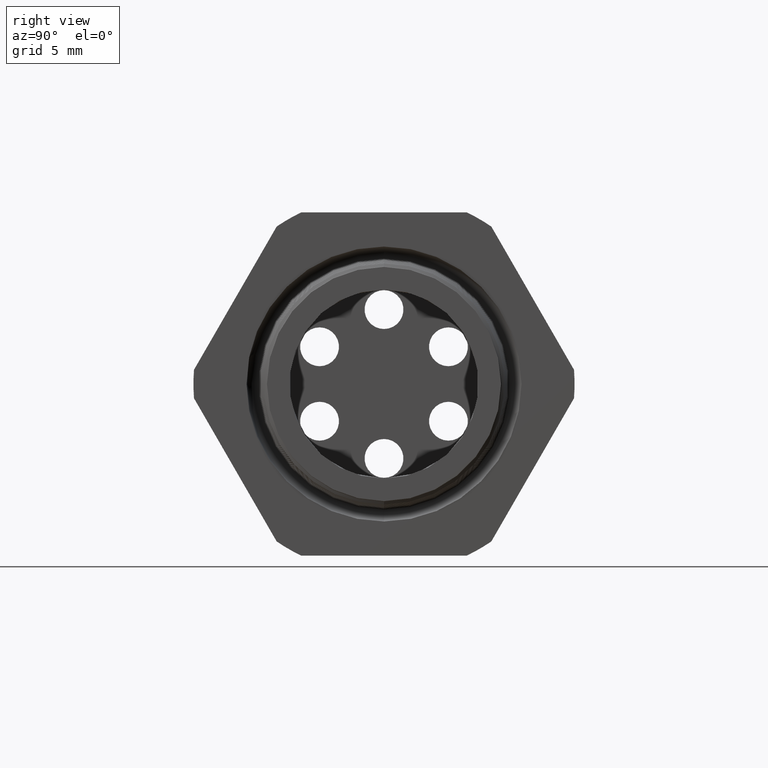
[diagram: clean part render]
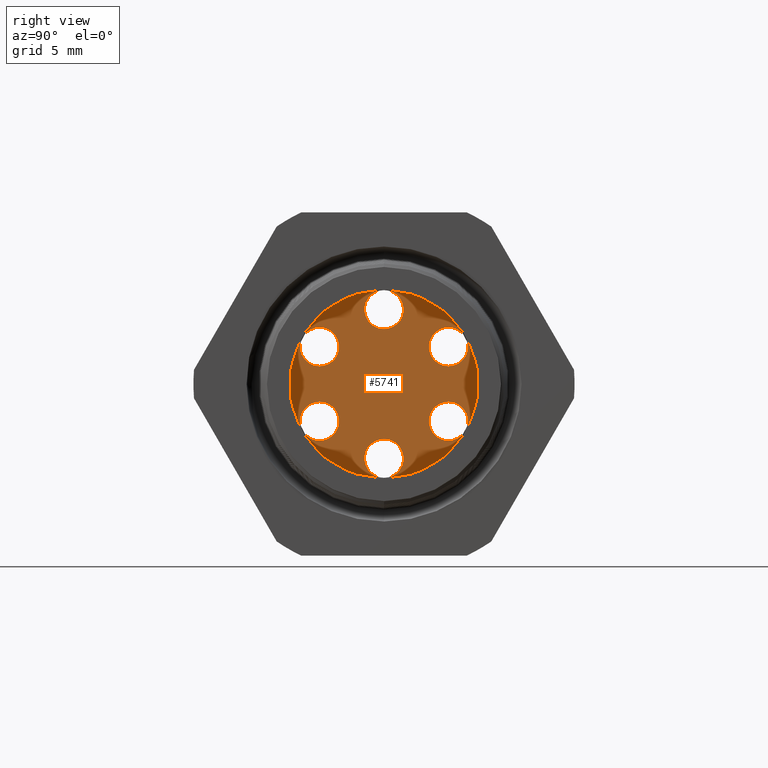
[diagram: same view with one face highlighted and labeled with its STEP entity id]
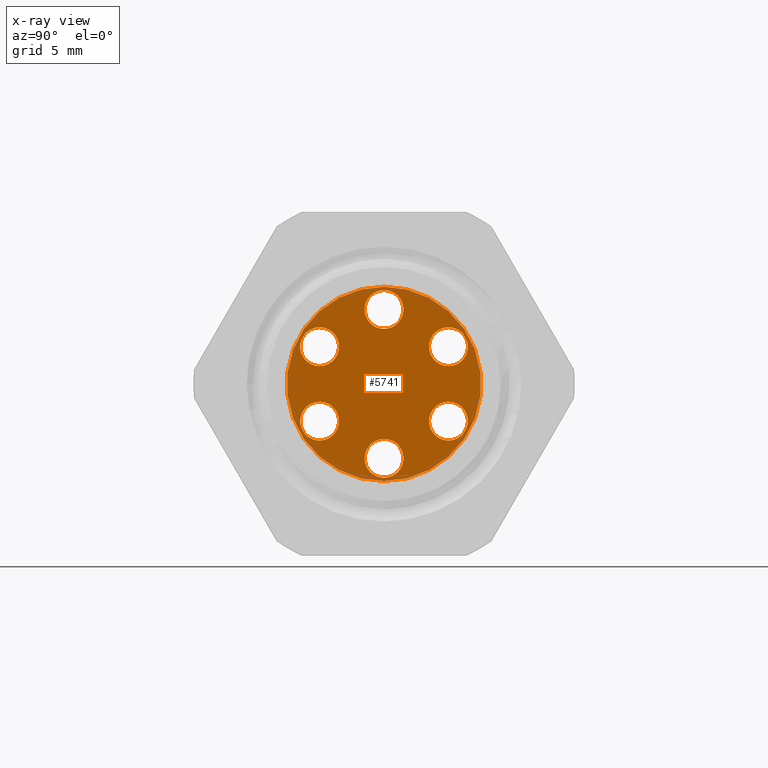
[diagram: x-ray of the same camera — body ghosted, the highlighted face saturated]
A machine part, right view. The second image highlights one B-rep face of the part: STEP entity #5741.
The next image is the same camera in x-ray: the body ghosted, the highlighted face saturated — about 8% of this face is hidden behind the body in this view.
In plain terms, the highlighted planar face has unit normal (-1, 0, 0).
Its self-contained STEP definition (entity closure, byte-faithful):
#22 = ORIENTED_EDGE ( 'NONE', *, *, #291, .F. ) ;
#23 = ORIENTED_EDGE ( 'NONE', *, *, #5746, .F. ) ;
#24 = EDGE_LOOP ( 'NONE', ( #22, #23 ) ) ;
#25 = ORIENTED_EDGE ( 'NONE', *, *, #26, .T. ) ;
#26 = EDGE_CURVE ( 'NONE', #235, #232, #2038, .T. ) ;
#27 = ORIENTED_EDGE ( 'NONE', *, *, #259, .T. ) ;
#28 = ORIENTED_EDGE ( 'NONE', *, *, #239, .T. ) ;
#29 = EDGE_LOOP ( 'NONE', ( #25, #28 ) ) ;
#30 = EDGE_CURVE ( 'NONE', #261, #260, #2033, .T. ) ;
#31 = ORIENTED_EDGE ( 'NONE', *, *, #30, .T. ) ;
#32 = ORIENTED_EDGE ( 'NONE', *, *, #281, .T. ) ;
#33 = EDGE_LOOP ( 'NONE', ( #31, #27 ) ) ;
#34 = ORIENTED_EDGE ( 'NONE', *, *, #36, .T. ) ;
#35 = EDGE_LOOP ( 'NONE', ( #34, #32 ) ) ;
#36 = EDGE_CURVE ( 'NONE', #283, #282, #2028, .T. ) ;
#37 = EDGE_LOOP ( 'NONE', ( #38, #40 ) ) ;
#38 = ORIENTED_EDGE ( 'NONE', *, *, #39, .T. ) ;
#39 = EDGE_CURVE ( 'NONE', #269, #268, #2089, .T. ) ;
#40 = ORIENTED_EDGE ( 'NONE', *, *, #267, .T. ) ;
#41 = ORIENTED_EDGE ( 'NONE', *, *, #319, .T. ) ;
#42 = ORIENTED_EDGE ( 'NONE', *, *, #43, .T. ) ;
#43 = EDGE_CURVE ( 'NONE', #321, #320, #2084, .T. ) ;
#44 = ORIENTED_EDGE ( 'NONE', *, *, #311, .T. ) ;
#45 = EDGE_LOOP ( 'NONE', ( #42, #41 ) ) ;
#51 = EDGE_CURVE ( 'NONE', #313, #312, #2073, .T. ) ;
#55 = ORIENTED_EDGE ( 'NONE', *, *, #51, .T. ) ;
#232 = VERTEX_POINT ( 'NONE', #2443 ) ;
#235 = VERTEX_POINT ( 'NONE', #2442 ) ;
#239 = EDGE_CURVE ( 'NONE', #232, #235, #2431, .T. ) ;
#259 = EDGE_CURVE ( 'NONE', #260, #261, #2459, .T. ) ;
#260 = VERTEX_POINT ( 'NONE', #2450 ) ;
#261 = VERTEX_POINT ( 'NONE', #2449 ) ;
#267 = EDGE_CURVE ( 'NONE', #268, #269, #2505, .T. ) ;
#268 = VERTEX_POINT ( 'NONE', #2500 ) ;
#269 = VERTEX_POINT ( 'NONE', #2499 ) ;
#281 = EDGE_CURVE ( 'NONE', #282, #283, #2540, .T. ) ;
#282 = VERTEX_POINT ( 'NONE', #2536 ) ;
#283 = VERTEX_POINT ( 'NONE', #2535 ) ;
#289 = VERTEX_POINT ( 'NONE', #2526 ) ;
#291 = EDGE_CURVE ( 'NONE', #289, #293, #2523, .T. ) ;
#293 = VERTEX_POINT ( 'NONE', #2514 ) ;
#311 = EDGE_CURVE ( 'NONE', #312, #313, #2554, .T. ) ;
#312 = VERTEX_POINT ( 'NONE', #2550 ) ;
#313 = VERTEX_POINT ( 'NONE', #2549 ) ;
#319 = EDGE_CURVE ( 'NONE', #320, #321, #2542, .T. ) ;
#320 = VERTEX_POINT ( 'NONE', #2595 ) ;
#321 = VERTEX_POINT ( 'NONE', #2594 ) ;
#2028 = CIRCLE ( 'NONE', #2093, 0.06000000000000002600 ) ;
#2029 = DIRECTION ( 'NONE',  ( 0.0000000000000000000, 0.8660254037844398200, 0.4999999999999980000 ) ) ;
#2030 = DIRECTION ( 'NONE',  ( -1.000000000000000000, 0.0000000000000000000, 0.0000000000000000000 ) ) ;
#2031 = CARTESIAN_POINT ( 'NONE',  ( -1.060000000000000100, -0.1989779967735128600, -0.1148799999999995100 ) ) ;
#2032 = AXIS2_PLACEMENT_3D ( 'NONE', #2031, #2030, #2029 ) ;
#2033 = CIRCLE ( 'NONE', #2032, 0.06000000000000001200 ) ;
#2034 = DIRECTION ( 'NONE',  ( 0.0000000000000000000, 0.0000000000000000000, 1.000000000000000000 ) ) ;
#2035 = DIRECTION ( 'NONE',  ( -1.000000000000000000, 0.0000000000000000000, 0.0000000000000000000 ) ) ;
#2036 = CARTESIAN_POINT ( 'NONE',  ( -1.060000000000000100, 0.0000000000000000000, -0.2297599999999999400 ) ) ;
#2037 = AXIS2_PLACEMENT_3D ( 'NONE', #2036, #2035, #2034 ) ;
#2038 = CIRCLE ( 'NONE', #2037, 0.06000000000000001200 ) ;
#2069 = DIRECTION ( 'NONE',  ( 0.0000000000000000000, -0.8660254037844328200, 0.5000000000000101000 ) ) ;
#2070 = DIRECTION ( 'NONE',  ( -1.000000000000000000, 0.0000000000000000000, 0.0000000000000000000 ) ) ;
#2071 = CARTESIAN_POINT ( 'NONE',  ( -1.060000000000000100, 0.1989779967735112500, -0.1148800000000023000 ) ) ;
#2072 = AXIS2_PLACEMENT_3D ( 'NONE', #2071, #2070, #2069 ) ;
#2073 = CIRCLE ( 'NONE', #2072, 0.06000000000000002600 ) ;
#2080 = DIRECTION ( 'NONE',  ( 0.0000000000000000000, -0.8660254037844432600, -0.4999999999999919500 ) ) ;
#2081 = DIRECTION ( 'NONE',  ( -1.000000000000000000, 0.0000000000000000000, 0.0000000000000000000 ) ) ;
#2082 = CARTESIAN_POINT ( 'NONE',  ( -1.060000000000000100, 0.1989779967735136300, 0.1148799999999981400 ) ) ;
#2083 = AXIS2_PLACEMENT_3D ( 'NONE', #2082, #2081, #2080 ) ;
#2084 = CIRCLE ( 'NONE', #2083, 0.06000000000000001900 ) ;
#2085 = DIRECTION ( 'NONE',  ( 0.0000000000000000000, -6.982966722218767300E-015, -1.000000000000000000 ) ) ;
#2086 = DIRECTION ( 'NONE',  ( -1.000000000000000000, 0.0000000000000000000, 0.0000000000000000000 ) ) ;
#2087 = CARTESIAN_POINT ( 'NONE',  ( -1.060000000000000100, 1.604406434096982900E-015, 0.2297599999999999400 ) ) ;
#2088 = AXIS2_PLACEMENT_3D ( 'NONE', #2087, #2086, #2085 ) ;
#2089 = CIRCLE ( 'NONE', #2088, 0.06000000000000001200 ) ;
#2090 = DIRECTION ( 'NONE',  ( 0.0000000000000000000, 0.8660254037844362700, -0.5000000000000041100 ) ) ;
#2091 = DIRECTION ( 'NONE',  ( -1.000000000000000000, 0.0000000000000000000, 0.0000000000000000000 ) ) ;
#2092 = CARTESIAN_POINT ( 'NONE',  ( -1.060000000000000100, -0.1989779967735121100, 0.1148800000000009100 ) ) ;
#2093 = AXIS2_PLACEMENT_3D ( 'NONE', #2092, #2091, #2090 ) ;
#2427 = DIRECTION ( 'NONE',  ( 0.0000000000000000000, 0.0000000000000000000, 1.000000000000000000 ) ) ;
#2428 = DIRECTION ( 'NONE',  ( -1.000000000000000000, 0.0000000000000000000, 0.0000000000000000000 ) ) ;
#2429 = CARTESIAN_POINT ( 'NONE',  ( -1.060000000000000100, 0.0000000000000000000, -0.2297599999999999400 ) ) ;
#2430 = AXIS2_PLACEMENT_3D ( 'NONE', #2429, #2428, #2427 ) ;
#2431 = CIRCLE ( 'NONE', #2430, 0.06000000000000001200 ) ;
#2442 = CARTESIAN_POINT ( 'NONE',  ( -1.060000000000000100, 0.0000000000000000000, -0.1697599999999999400 ) ) ;
#2443 = CARTESIAN_POINT ( 'NONE',  ( -1.060000000000000100, 7.347880794884123000E-018, -0.2897599999999999600 ) ) ;
#2449 = CARTESIAN_POINT ( 'NONE',  ( -1.060000000000000100, -0.1989779967735128600, -0.05487999999999949900 ) ) ;
#2450 = CARTESIAN_POINT ( 'NONE',  ( -1.060000000000000100, -0.1989779967735128600, -0.1748799999999995600 ) ) ;
#2451 = DIRECTION ( 'NONE',  ( 0.0000000000000000000, 0.8660254037844398200, 0.4999999999999980000 ) ) ;
#2452 = DIRECTION ( 'NONE',  ( -1.000000000000000000, 0.0000000000000000000, 0.0000000000000000000 ) ) ;
#2453 = CARTESIAN_POINT ( 'NONE',  ( -1.060000000000000100, -0.1989779967735128600, -0.1148799999999995100 ) ) ;
#2454 = AXIS2_PLACEMENT_3D ( 'NONE', #2453, #2452, #2451 ) ;
#2459 = CIRCLE ( 'NONE', #2454, 0.06000000000000001200 ) ;
#2482 = CARTESIAN_POINT ( 'NONE',  ( -1.060000000000000100, -0.1989779967735121100, 0.1148800000000009100 ) ) ;
#2499 = CARTESIAN_POINT ( 'NONE',  ( -1.060000000000000100, 1.604406434096982900E-015, 0.2897599999999999600 ) ) ;
#2500 = CARTESIAN_POINT ( 'NONE',  ( -1.060000000000000100, 1.611754314891866900E-015, 0.1697599999999999400 ) ) ;
#2501 = DIRECTION ( 'NONE',  ( 0.0000000000000000000, -6.982966722218767300E-015, -1.000000000000000000 ) ) ;
#2502 = DIRECTION ( 'NONE',  ( -1.000000000000000000, 0.0000000000000000000, 0.0000000000000000000 ) ) ;
#2503 = CARTESIAN_POINT ( 'NONE',  ( -1.060000000000000100, 1.604406434096982900E-015, 0.2297599999999999400 ) ) ;
#2504 = AXIS2_PLACEMENT_3D ( 'NONE', #2503, #2502, #2501 ) ;
#2505 = CIRCLE ( 'NONE', #2504, 0.06000000000000001200 ) ;
#2514 = CARTESIAN_POINT ( 'NONE',  ( -1.060000000000000100, 3.673940397442058900E-017, -0.2999999999999999300 ) ) ;
#2515 = DIRECTION ( 'NONE',  ( 0.0000000000000000000, 0.0000000000000000000, 1.000000000000000000 ) ) ;
#2516 = DIRECTION ( 'NONE',  ( -1.000000000000000000, 0.0000000000000000000, 0.0000000000000000000 ) ) ;
#2517 = CARTESIAN_POINT ( 'NONE',  ( -1.060000000000000100, 0.0000000000000000000, 0.0000000000000000000 ) ) ;
#2518 = AXIS2_PLACEMENT_3D ( 'NONE', #2517, #2516, #2515 ) ;
#2523 = CIRCLE ( 'NONE', #2518, 0.2999999999999999300 ) ;
#2526 = CARTESIAN_POINT ( 'NONE',  ( -1.060000000000000100, 0.0000000000000000000, 0.2999999999999999300 ) ) ;
#2535 = CARTESIAN_POINT ( 'NONE',  ( -1.060000000000000100, -0.1989779967735121100, 0.1748800000000009200 ) ) ;
#2536 = CARTESIAN_POINT ( 'NONE',  ( -1.060000000000000100, -0.1989779967735121100, 0.05488000000000089300 ) ) ;
#2537 = DIRECTION ( 'NONE',  ( 0.0000000000000000000, 0.8660254037844362700, -0.5000000000000041100 ) ) ;
#2538 = DIRECTION ( 'NONE',  ( -1.000000000000000000, 0.0000000000000000000, 0.0000000000000000000 ) ) ;
#2539 = AXIS2_PLACEMENT_3D ( 'NONE', #2482, #2538, #2537 ) ;
#2540 = CIRCLE ( 'NONE', #2539, 0.06000000000000002600 ) ;
#2542 = CIRCLE ( 'NONE', #2599, 0.06000000000000001900 ) ;
#2549 = CARTESIAN_POINT ( 'NONE',  ( -1.060000000000000100, 0.1989779967735112500, -0.05488000000000228100 ) ) ;
#2550 = CARTESIAN_POINT ( 'NONE',  ( -1.060000000000000100, 0.1989779967735112500, -0.1748800000000023100 ) ) ;
#2551 = DIRECTION ( 'NONE',  ( 0.0000000000000000000, -0.8660254037844328200, 0.5000000000000101000 ) ) ;
#2552 = DIRECTION ( 'NONE',  ( -1.000000000000000000, 0.0000000000000000000, 0.0000000000000000000 ) ) ;
#2553 = AXIS2_PLACEMENT_3D ( 'NONE', #2560, #2552, #2551 ) ;
#2554 = CIRCLE ( 'NONE', #2553, 0.06000000000000002600 ) ;
#2560 = CARTESIAN_POINT ( 'NONE',  ( -1.060000000000000100, 0.1989779967735112500, -0.1148800000000023000 ) ) ;
#2594 = CARTESIAN_POINT ( 'NONE',  ( -1.060000000000000100, 0.1989779967735136300, 0.1748799999999981500 ) ) ;
#2595 = CARTESIAN_POINT ( 'NONE',  ( -1.060000000000000100, 0.1989779967735136300, 0.05487999999999810400 ) ) ;
#2596 = DIRECTION ( 'NONE',  ( 0.0000000000000000000, -0.8660254037844432600, -0.4999999999999919500 ) ) ;
#2597 = DIRECTION ( 'NONE',  ( -1.000000000000000000, 0.0000000000000000000, 0.0000000000000000000 ) ) ;
#2598 = CARTESIAN_POINT ( 'NONE',  ( -1.060000000000000100, 0.1989779967735136300, 0.1148799999999981400 ) ) ;
#2599 = AXIS2_PLACEMENT_3D ( 'NONE', #2598, #2597, #2596 ) ;
#5609 = DIRECTION ( 'NONE',  ( 0.0000000000000000000, 0.0000000000000000000, 1.000000000000000000 ) ) ;
#5610 = DIRECTION ( 'NONE',  ( -1.000000000000000000, 0.0000000000000000000, 0.0000000000000000000 ) ) ;
#5611 = CARTESIAN_POINT ( 'NONE',  ( -1.060000000000000100, 0.0000000000000000000, 0.0000000000000000000 ) ) ;
#5612 = AXIS2_PLACEMENT_3D ( 'NONE', #5611, #5610, #5609 ) ;
#5613 = CIRCLE ( 'NONE', #5612, 0.2999999999999999300 ) ;
#5619 = DIRECTION ( 'NONE',  ( 0.0000000000000000000, 0.0000000000000000000, 1.000000000000000000 ) ) ;
#5620 = DIRECTION ( 'NONE',  ( -1.000000000000000000, 0.0000000000000000000, 0.0000000000000000000 ) ) ;
#5621 = CARTESIAN_POINT ( 'NONE',  ( -1.060000000000000100, 0.0000000000000000000, 0.0000000000000000000 ) ) ;
#5622 = AXIS2_PLACEMENT_3D ( 'NONE', #5621, #5620, #5619 ) ;
#5623 = FACE_OUTER_BOUND ( 'NONE', #24, .T. ) ;
#5624 = FACE_BOUND ( 'NONE', #29, .T. ) ;
#5625 = FACE_BOUND ( 'NONE', #33, .T. ) ;
#5626 = FACE_BOUND ( 'NONE', #35, .T. ) ;
#5627 = FACE_BOUND ( 'NONE', #37, .T. ) ;
#5628 = FACE_BOUND ( 'NONE', #45, .T. ) ;
#5629 = FACE_BOUND ( 'NONE', #5740, .T. ) ;
#5633 = PLANE ( 'NONE',  #5622 ) ;
#5740 = EDGE_LOOP ( 'NONE', ( #55, #44 ) ) ;
#5741 = ADVANCED_FACE ( 'NONE', ( #5629, #5628, #5627, #5626, #5625, #5624, #5623 ), #5633, .F. ) ;
#5746 = EDGE_CURVE ( 'NONE', #293, #289, #5613, .T. ) ;